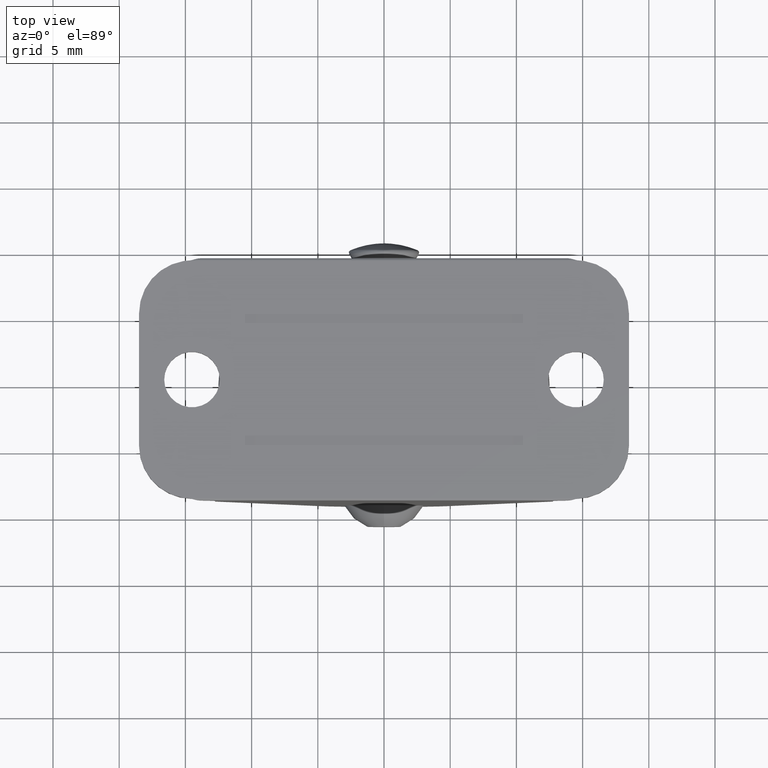
[diagram: clean part render]
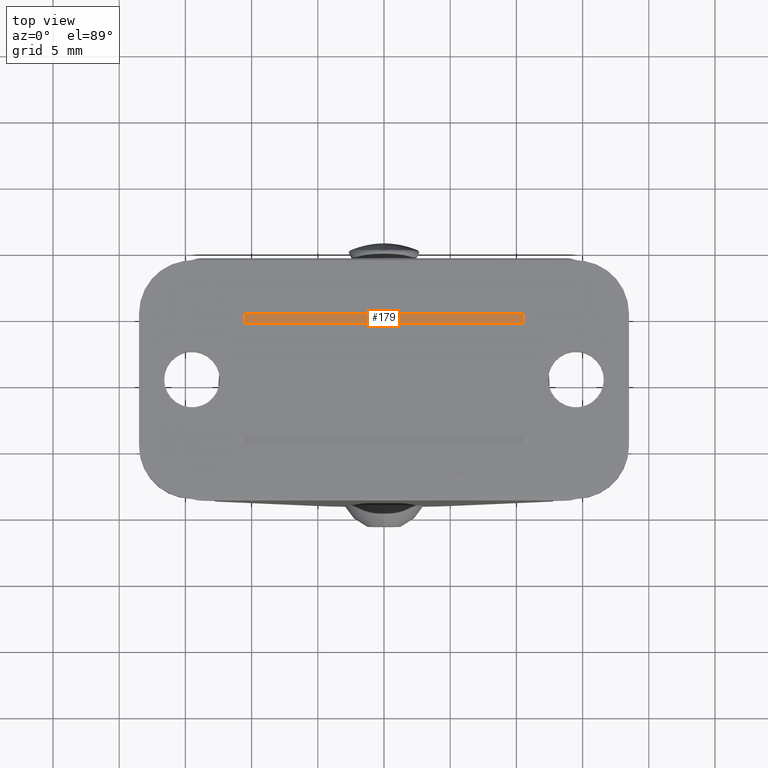
[diagram: same view with one face highlighted and labeled with its STEP entity id]
A machine part, top view. The second image highlights one B-rep face of the part: STEP entity #179.
In plain terms, the highlighted planar face has unit normal (0, 0, -1).
Its self-contained STEP definition (entity closure, byte-faithful):
#179=ADVANCED_FACE('',(#542),#541,.F.);
#541=PLANE('',#1411);
#542=FACE_OUTER_BOUND('',#1412,.T.);
#1408=CARTESIAN_POINT('',(1.26000000000E+01,4.18000000000E+00,2.24000000000E+01));
#1409=DIRECTION('',(-0.00000000000E+00,0.00000000000E+00,-1.00000000000E+00));
#1410=DIRECTION('',(-1.00000000000E+00,0.00000000000E+00,0.00000000000E+00));
#1411=AXIS2_PLACEMENT_3D('',#1408,#1409,#1410);
#1412=EDGE_LOOP('',(#2072,#2073,#2074,#2075));
#2072=ORIENTED_EDGE('',*,*,#2451,.F.);
#2073=ORIENTED_EDGE('',*,*,#2454,.T.);
#2074=ORIENTED_EDGE('',*,*,#2446,.F.);
#2075=ORIENTED_EDGE('',*,*,#2450,.F.);
#2446=EDGE_CURVE('',#3152,#3159,#3160,.T.);
#2450=EDGE_CURVE('',#3179,#3152,#3186,.T.);
#2451=EDGE_CURVE('',#3192,#3179,#3193,.T.);
#2454=EDGE_CURVE('',#3192,#3159,#3212,.T.);
#3152=VERTEX_POINT('',#4359);
#3159=VERTEX_POINT('',#4363);
#3160=LINE('',#4364,#4365);
#3179=VERTEX_POINT('',#4374);
#3186=LINE('',#4378,#4379);
#3192=VERTEX_POINT('',#4381);
#3193=LINE('',#4382,#4383);
#3212=LINE('',#4392,#4393);
#4359=CARTESIAN_POINT('',(1.05000000000E+01,4.25000000000E+00,2.24000000000E+01));
#4363=CARTESIAN_POINT('',(-1.05000000000E+01,4.25000000000E+00,2.24000000000E+01));
#4364=CARTESIAN_POINT('',(1.05000000000E+01,4.25000000000E+00,2.24000000000E+01));
#4365=VECTOR('',#4366,2.10000000000E+01);
#4366=DIRECTION('',(-1.00000000000E+00,0.00000000000E+00,0.00000000000E+00));
#4374=CARTESIAN_POINT('',(1.05000000000E+01,4.95000000000E+00,2.24000000000E+01));
#4378=CARTESIAN_POINT('',(1.05000000000E+01,4.95000000000E+00,2.24000000000E+01));
#4379=VECTOR('',#4380,7.00000000000E-01);
#4380=DIRECTION('',(0.00000000000E+00,-1.00000000000E+00,0.00000000000E+00));
#4381=CARTESIAN_POINT('',(-1.05000000000E+01,4.95000000000E+00,2.24000000000E+01));
#4382=CARTESIAN_POINT('',(-1.05000000000E+01,4.95000000000E+00,2.24000000000E+01));
#4383=VECTOR('',#4384,2.10000000000E+01);
#4384=DIRECTION('',(1.00000000000E+00,0.00000000000E+00,0.00000000000E+00));
#4392=CARTESIAN_POINT('',(-1.05000000000E+01,4.95000000000E+00,2.24000000000E+01));
#4393=VECTOR('',#4394,7.00000000000E-01);
#4394=DIRECTION('',(0.00000000000E+00,-1.00000000000E+00,0.00000000000E+00));